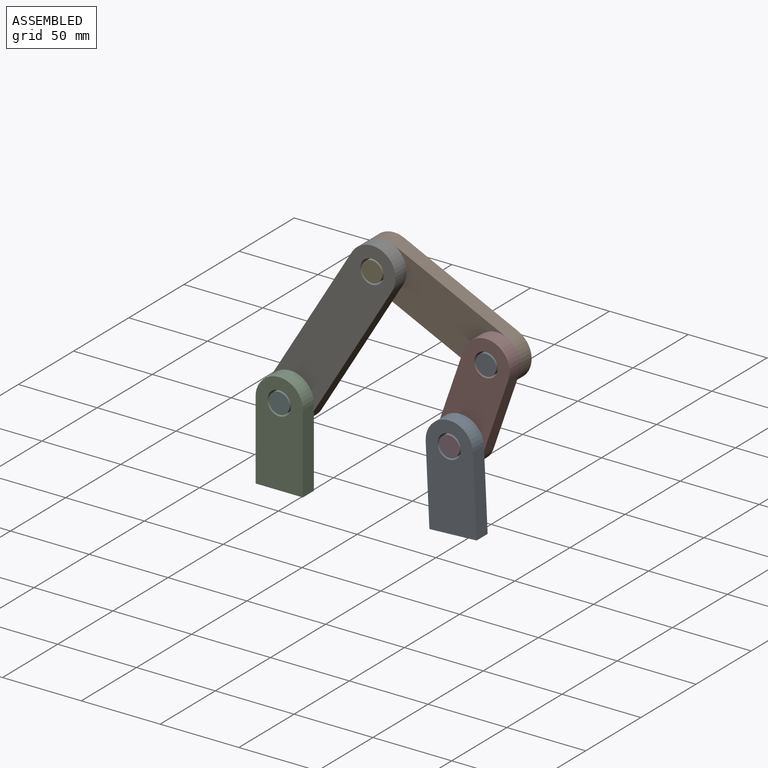
[diagram: assembled view]
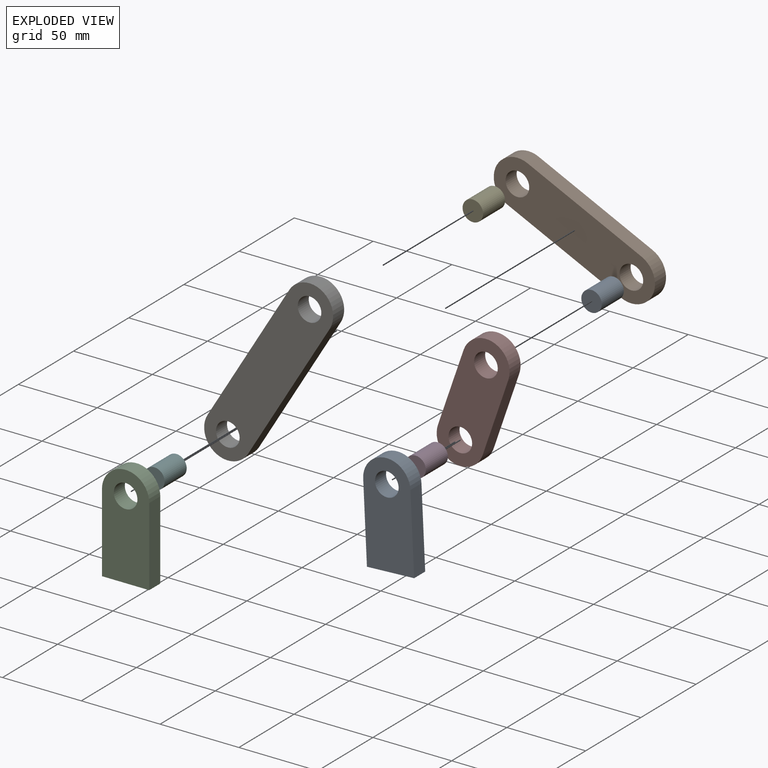
[diagram: exploded view]
GUIDED TOUR — MATED ASSEMBLY (Onshape document ad68ea50f6ec6d698caa9839, AutoMate assembly ad68ea50f6ec6d698caa9839_2b1dbaef5c6dba914f6e7a33_b04c2d4376f6a3d73c29349d_default)

This assembly has 9 components, labeled P0..P8 below (a component is one placed occurrence of a part; the same part can appear more than once), held together by 12 mates. A mate is a constraint between two components; its type names the relative motion it leaves free:
  CYLINDRICAL — leaves both rotation about and translation along the listed axis free,
  FASTENED — locks the two components together rigidly (no relative motion),
  REVOLUTE — leaves rotation about the listed axis free (a hinge).
Axis/direction vectors are unit vectors and 'through' points are millimeter coordinates, both in the assembly's world frame.

MATES
  1. FASTENED "緊固 4": P5 <-> P2, direction (0.000, -1.000, 0.000) through (-60.09, -34.81, 24.83) mm
  2. REVOLUTE "轉動 1": P6 <-> P2, axis (0.000, 1.000, 0.000) through (-60.09, -24.81, 24.83) mm
  3. CYLINDRICAL "圓柱 3": P4 <-> P6, axis (0.000, 1.000, 0.000) through (-8.25, -14.81, 110.34) mm
  4. REVOLUTE "轉動 4": P7 <-> P0, axis (0.000, -1.000, 0.000) through (47.81, -24.81, 28.86) mm
  5. REVOLUTE "轉動 2": P1 <-> P6, axis (0.000, -1.000, 0.000) through (-8.25, -14.81, 110.34) mm
  6. REVOLUTE "轉動 3": P1 <-> P7, axis (0.000, -1.000, 0.000) through (64.07, -14.81, 76.14) mm
  7. FASTENED "緊固 1": P3 <-> P0, direction (0.000, -1.000, 0.000) through (47.81, -34.81, 28.86) mm
  8. CYLINDRICAL "圓柱 1": P3 <-> P0, axis (0.000, 1.000, 0.000) through (47.81, -24.81, 28.86) mm
  9. CYLINDRICAL "圓柱 2": P5 <-> P2, axis (0.000, 1.000, 0.000) through (-60.09, -24.81, 24.83) mm
  10. FASTENED "緊固 3": P4 <-> P6, direction (0.000, -1.000, 0.000) through (-8.25, -24.81, 110.34) mm
  11. FASTENED "緊固 2": P8 <-> P7, direction (0.000, -1.000, 0.000) through (64.07, -24.81, 76.14) mm
  12. CYLINDRICAL "圓柱 4": P8 <-> P7, axis (0.000, 1.000, 0.000) through (64.07, -14.81, 76.14) mm

ASSEMBLY ORDER
  1. P7 — the base component [order verified]
  2. P1 [order verified]
  3. P8 [order verified]
  4. P6 [order verified]
  5. P4 [order verified]
  6. P5 [order verified]
  7. P3 [order verified]
  8. P2 [order verified]
  9. P0 [order verified]
Order-tag legend:
  [order verified] — this step's position reverses a verified removal order: the component was checked to insert without passing through the ones already placed.

Of the 9 components, 9 carry the full construction recipe — the FeatureScript program that regenerates the part's solid from scratch; the rest are supplied as boundary geometry only.
Each toured component is shown spotlighted twice — in the assembled view, then in the exploded view, where a leader line traces a displaced component back to its assembled socket (saturated green if recipe-attached, orange if geometry-only; every other component desaturated gray) — followed by its recipe or geometry summary and the mates that hold it.
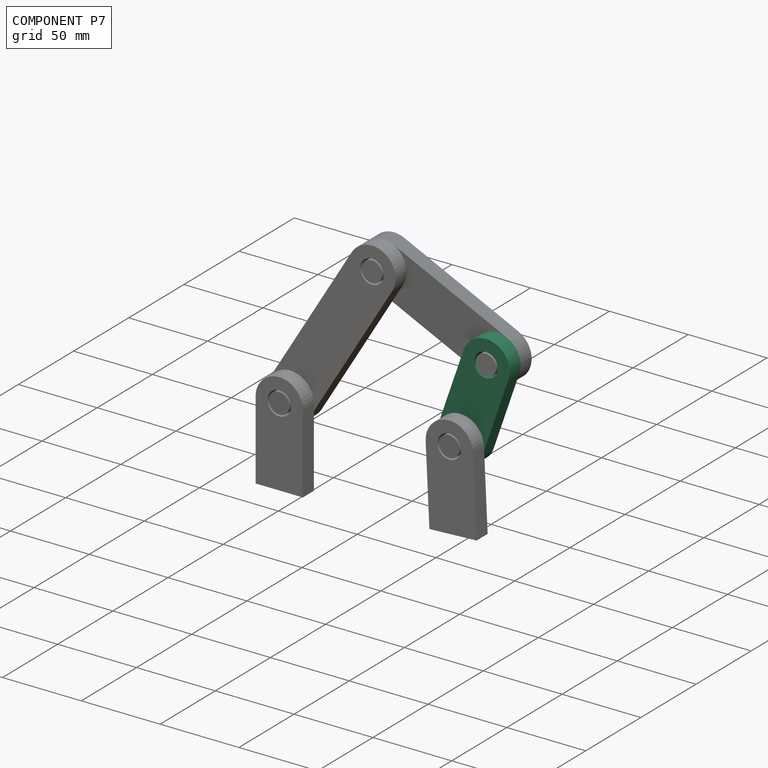
[diagram: component P7 — assembled]
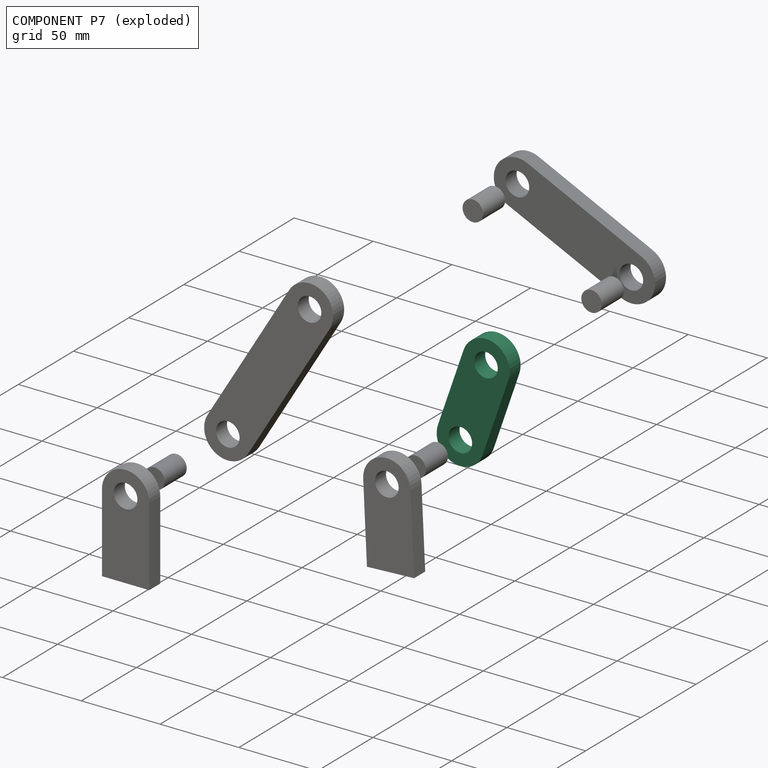
[diagram: component P7 — exploded]
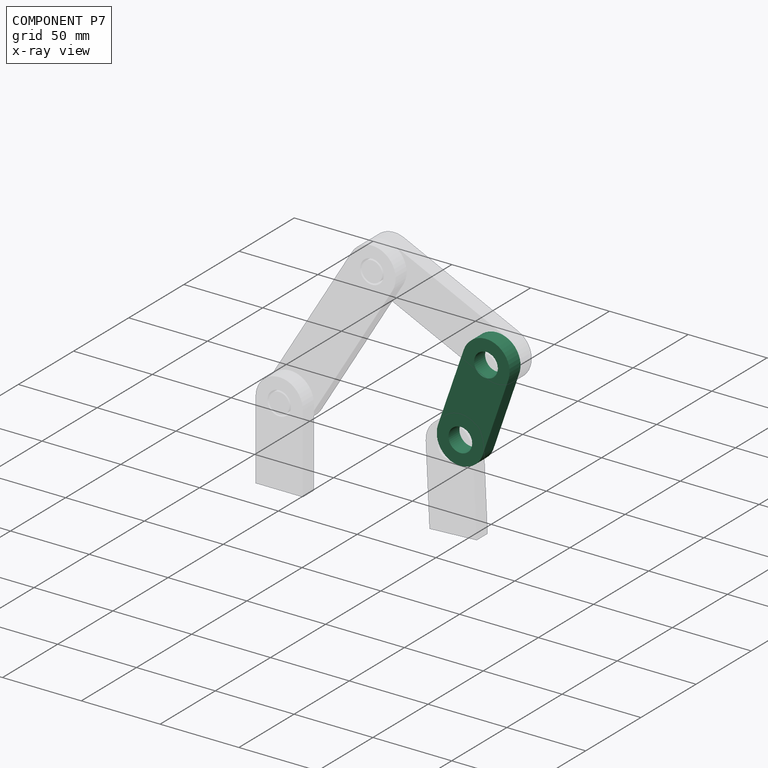
[diagram: component P7 — x-ray view]
COMPONENT P7 — recipe-attached (CADFS 00659129, mesh-verified: the recipe's output STEP matches this component's geometry to below the mesh-comparison resolution (tessellation chordal tolerance ~0.129 mm)).
Held by: REVOLUTE mate "轉動 4" to P0; REVOLUTE mate "轉動 3" to P1; FASTENED mate "緊固 2" to P8; CYLINDRICAL mate "圓柱 4" to P8.
Construction recipe (FeatureScript — the CAD program that rebuilds this solid; sketch coordinates are in the units given by the * unit suffixes, e.g. mm):

FeatureScript 1511;
import(path : "onshape/std/geometry.fs", version : "1511.0");
import(path : "onshape/std/common.fs", version : "1511.0");
const mm = millimeter;
const VERTEX = EntityType.VERTEX;
const EDGE = EntityType.EDGE;
const FACE = EntityType.FACE;
const BODY = EntityType.BODY;
function v(x, y){return vector(x, y);}
function OD(order){return orderDisambiguation(order);}
function OSD(set){return originalSetDisambiguation(set);}
function TD(topology){return topologyDisambiguation(topology);}
function TDD(query){return trueDependencyDisambiguation(query);}
function sQuery(a, b, c) {return sketchEntityQuery(a, b, c);}

annotation { "Feature Type Name" : "Feature", "Feature Type Description" : "" }
export const myFeature = defineFeature(function(context is Context, id is Id, definition is map)
    precondition{}
    {
        {
            var Q0;
            Q0=qCreatedBy(makeId("Front.planeOp"),FACE);
            var sketch = newSketch(context, id + "F0", { "sketchPlane" : qUnion([Q0])});
            skLineSegment(sketch, "E0", {"start": v(0, 40) * mm, "end": v(0, 0) * mm, "construction": true});
            skLineSegment(sketch, "E1", {"start": v(-15, 0) * mm, "end": v(15, 0) * mm, "construction": true});
            skCircle(sketch, "E2", {"center": v(0, 25) * mm, "radius": 7.5 * mm});
            skArc(sketch, "E3", {"start": v(15, 25) * mm, "mid": v(0, 40) * mm, "end": v(-15, 25) * mm});
            skLineSegment(sketch, "E4", {"start": v(-15, 25) * mm, "end": v(-15, 0) * mm});
            skLineSegment(sketch, "E5", {"start": v(15, 25) * mm, "end": v(15, 0) * mm});
            skArc(sketch, "E6.MirrorCS", {"start": v(15, -25) * mm, "mid": v(0, -40) * mm, "end": v(-15, -25) * mm});
            skCircle(sketch, "E7.MirrorC", {"center": v(0, -25) * mm, "radius": 7.5 * mm});
            skLineSegment(sketch, "E8.MirrorCS", {"start": v(15, -25) * mm, "end": v(15, 0) * mm});
            skLineSegment(sketch, "E9.MirrorCS", {"start": v(-15, -25) * mm, "end": v(-15, 0) * mm});
            skSolve(sketch);
        }
        {
            var Q0;
            Q0=qSketchRegion(id+"F0",true);
            extrude(context, id + "F1", {"entities" : qUnion([Q0]), "depth" : 10 * mm, "offsetDistance" : 25 * mm});
        }
    });
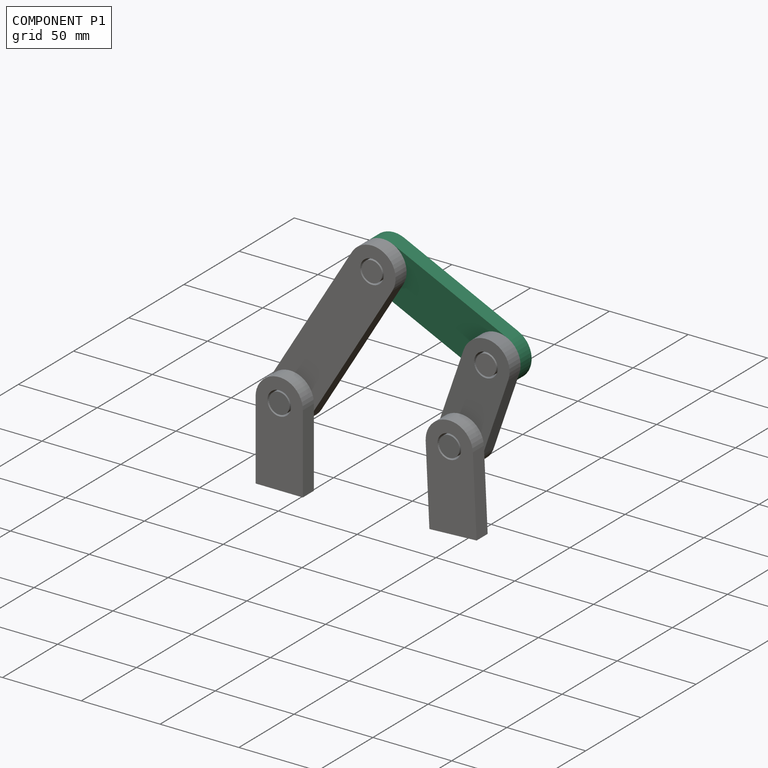
[diagram: component P1 — assembled]
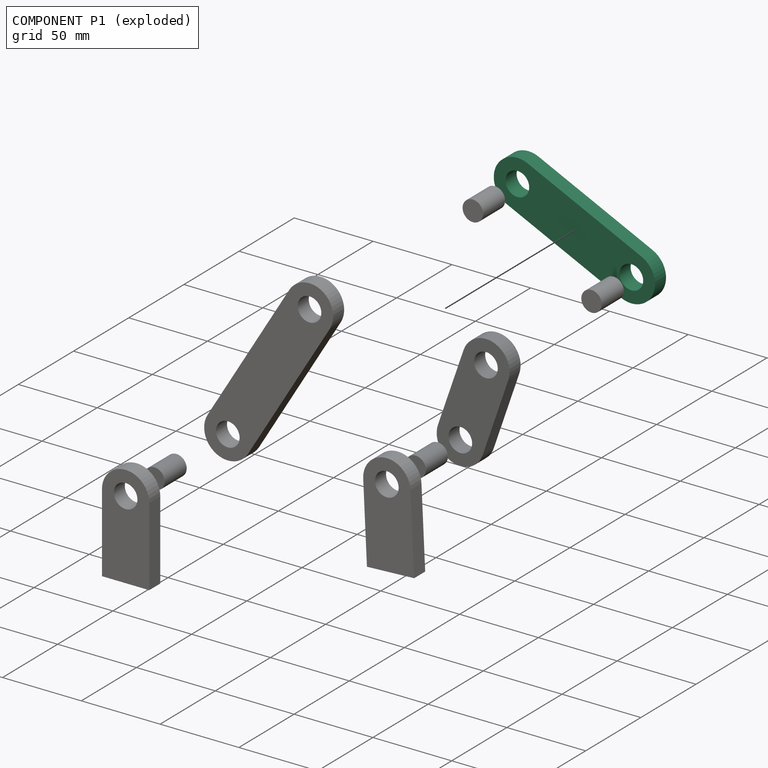
[diagram: component P1 — exploded]
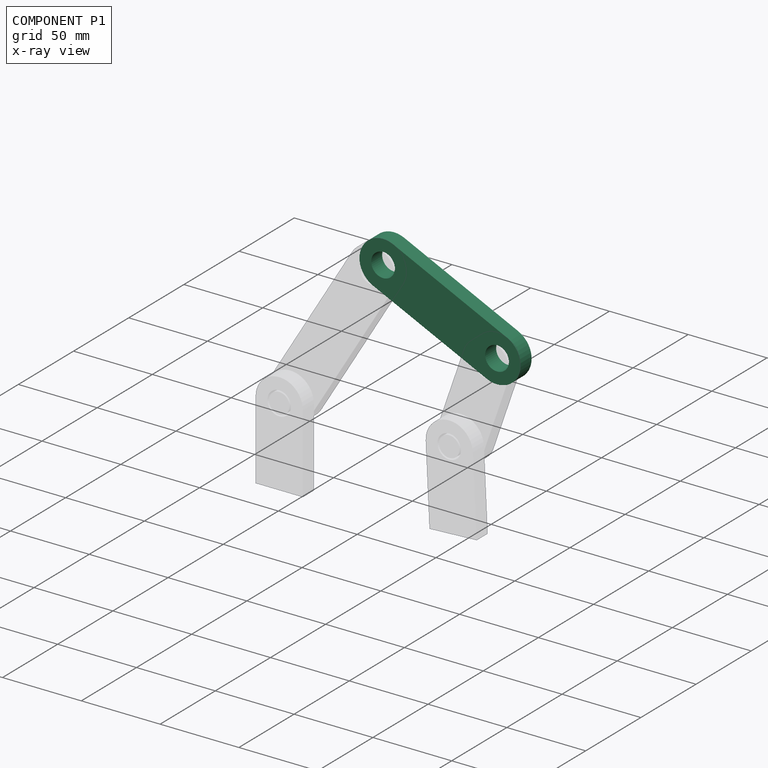
[diagram: component P1 — x-ray view]
COMPONENT P1 — recipe-attached (CADFS 00659130, mesh-verified: the recipe's output STEP matches this component's geometry to below the mesh-comparison resolution (tessellation chordal tolerance ~0.172 mm)).
Held by: REVOLUTE mate "轉動 2" to P6; REVOLUTE mate "轉動 3" to P7.
Construction recipe (FeatureScript — the CAD program that rebuilds this solid; sketch coordinates are in the units given by the * unit suffixes, e.g. mm):

FeatureScript 1511;
import(path : "onshape/std/geometry.fs", version : "1511.0");
import(path : "onshape/std/common.fs", version : "1511.0");
const mm = millimeter;
const VERTEX = EntityType.VERTEX;
const EDGE = EntityType.EDGE;
const FACE = EntityType.FACE;
const BODY = EntityType.BODY;
function v(x, y){return vector(x, y);}
function OD(order){return orderDisambiguation(order);}
function OSD(set){return originalSetDisambiguation(set);}
function TD(topology){return topologyDisambiguation(topology);}
function TDD(query){return trueDependencyDisambiguation(query);}
function sQuery(a, b, c) {return sketchEntityQuery(a, b, c);}

annotation { "Feature Type Name" : "Feature", "Feature Type Description" : "" }
export const myFeature = defineFeature(function(context is Context, id is Id, definition is map)
    precondition{}
    {
        {
            var Q0;
            Q0=qCreatedBy(makeId("Front.planeOp"),FACE);
            var sketch = newSketch(context, id + "F0", { "sketchPlane" : qUnion([Q0])});
            skLineSegment(sketch, "E0", {"start": v(0, 55) * mm, "end": v(0, 0) * mm, "construction": true});
            skLineSegment(sketch, "E1", {"start": v(-15, 0) * mm, "end": v(15, 0) * mm, "construction": true});
            skCircle(sketch, "E2", {"center": v(0, 40) * mm, "radius": 7.5 * mm});
            skArc(sketch, "E3", {"start": v(15, 40) * mm, "mid": v(0, 55) * mm, "end": v(-15, 40) * mm});
            skLineSegment(sketch, "E4", {"start": v(-15, 40) * mm, "end": v(-15, 0) * mm});
            skLineSegment(sketch, "E5", {"start": v(15, 40) * mm, "end": v(15, 0) * mm});
            skArc(sketch, "E6.MirrorCS", {"start": v(15, -40) * mm, "mid": v(0, -55) * mm, "end": v(-15, -40) * mm});
            skCircle(sketch, "E7.MirrorC", {"center": v(0, -40) * mm, "radius": 7.5 * mm});
            skLineSegment(sketch, "E8.MirrorCS", {"start": v(15, -40) * mm, "end": v(15, 0) * mm});
            skLineSegment(sketch, "E9.MirrorCS", {"start": v(-15, -40) * mm, "end": v(-15, 0) * mm});
            skSolve(sketch);
        }
        {
            var Q0;
            Q0=qSketchRegion(id+"F0",true);
            extrude(context, id + "F1", {"entities" : qUnion([Q0]), "depth" : 10 * mm, "offsetDistance" : 25 * mm});
        }
    });
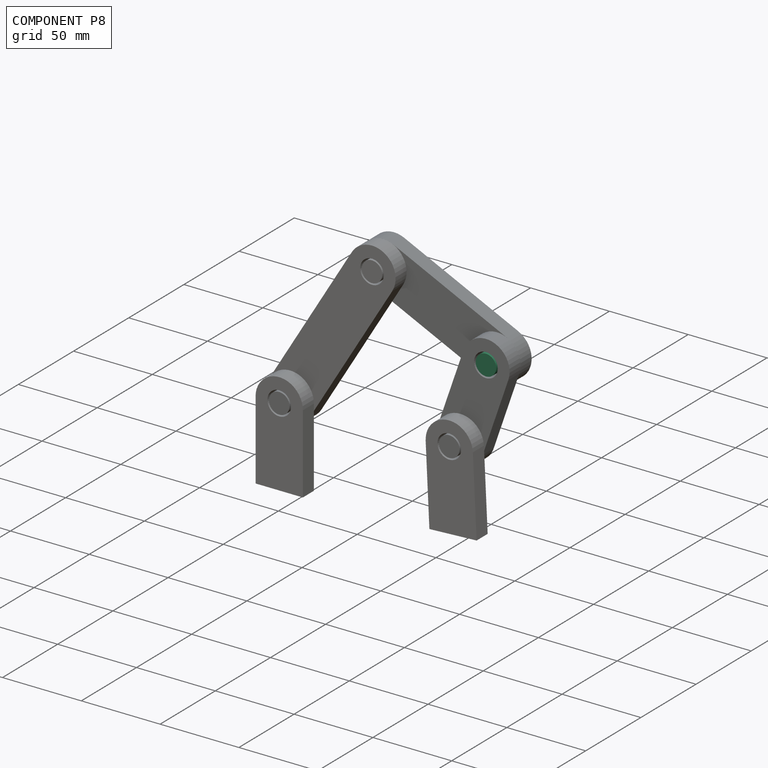
[diagram: component P8 — assembled]
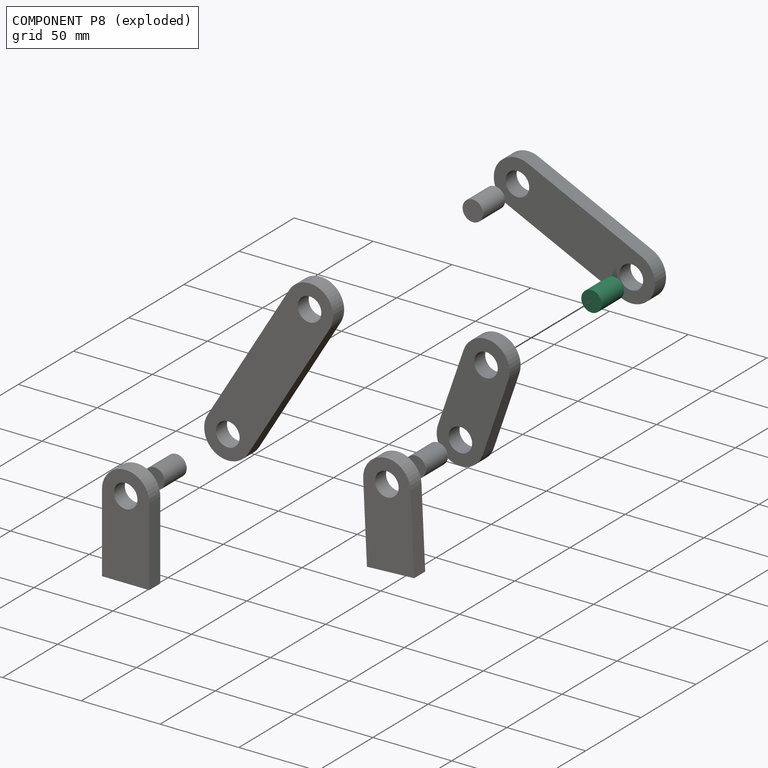
[diagram: component P8 — exploded]
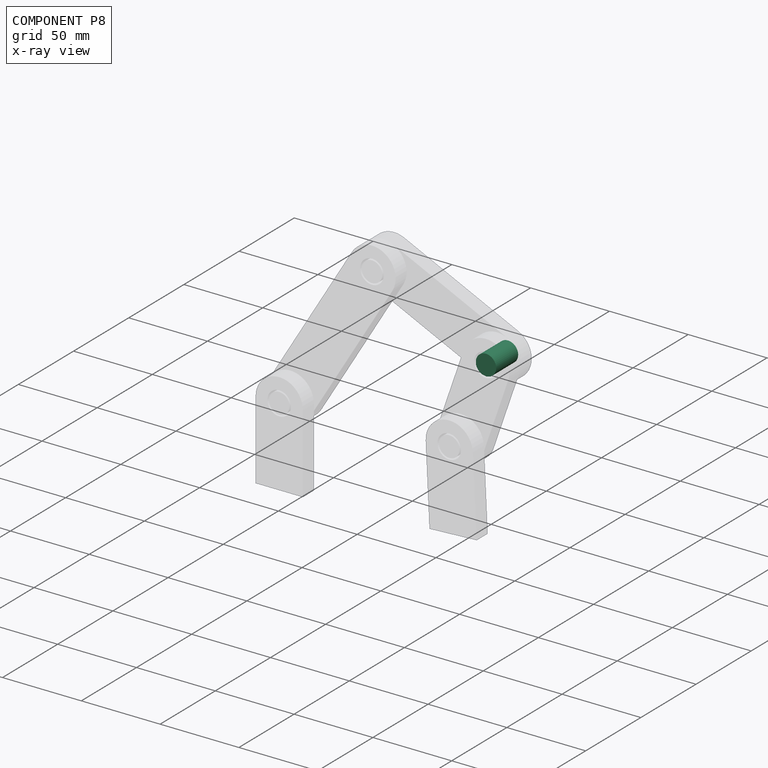
[diagram: component P8 — x-ray view]
COMPONENT P8 — same part as P3 (CADFS 00659132); its construction recipe is shown at P3.
Held by: FASTENED mate "緊固 2" to P7; CYLINDRICAL mate "圓柱 4" to P7.
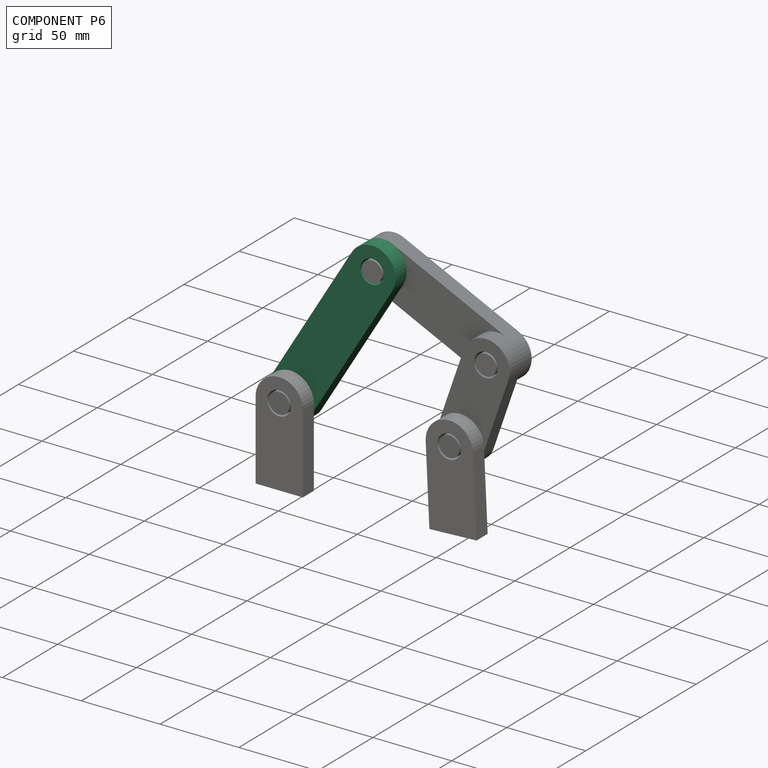
[diagram: component P6 — assembled]
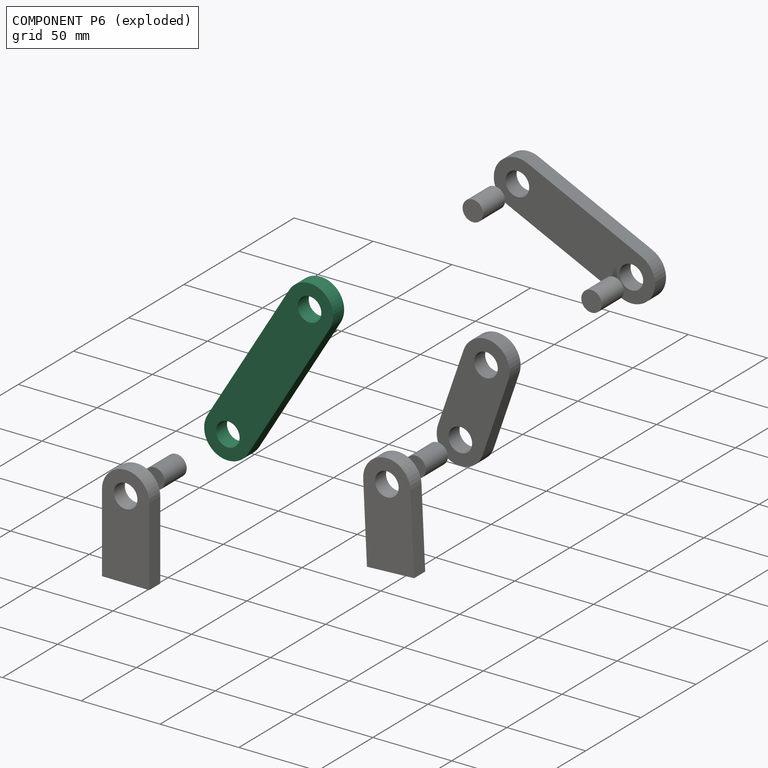
[diagram: component P6 — exploded]
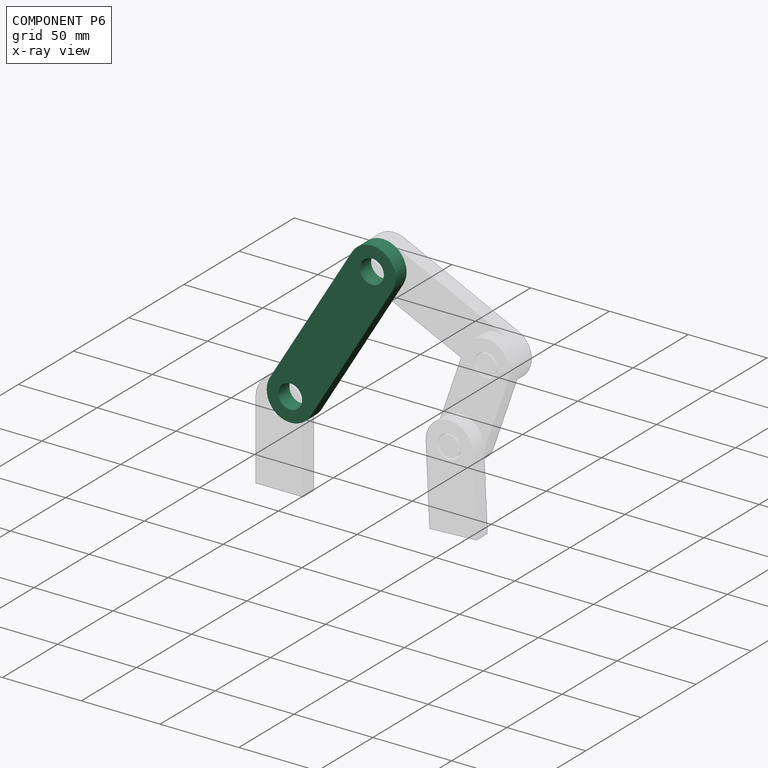
[diagram: component P6 — x-ray view]
COMPONENT P6 — recipe-attached (CADFS 00659131, mesh-verified: the recipe's output STEP matches this component's geometry to below the mesh-comparison resolution (tessellation chordal tolerance ~0.201 mm)).
Held by: REVOLUTE mate "轉動 1" to P2; CYLINDRICAL mate "圓柱 3" to P4; REVOLUTE mate "轉動 2" to P1; FASTENED mate "緊固 3" to P4.
Construction recipe (FeatureScript — the CAD program that rebuilds this solid; sketch coordinates are in the units given by the * unit suffixes, e.g. mm):

FeatureScript 1511;
import(path : "onshape/std/geometry.fs", version : "1511.0");
import(path : "onshape/std/common.fs", version : "1511.0");
const mm = millimeter;
const VERTEX = EntityType.VERTEX;
const EDGE = EntityType.EDGE;
const FACE = EntityType.FACE;
const BODY = EntityType.BODY;
function v(x, y){return vector(x, y);}
function OD(order){return orderDisambiguation(order);}
function OSD(set){return originalSetDisambiguation(set);}
function TD(topology){return topologyDisambiguation(topology);}
function TDD(query){return trueDependencyDisambiguation(query);}
function sQuery(a, b, c) {return sketchEntityQuery(a, b, c);}

annotation { "Feature Type Name" : "Feature", "Feature Type Description" : "" }
export const myFeature = defineFeature(function(context is Context, id is Id, definition is map)
    precondition{}
    {
        {
            var Q0;
            Q0=qCreatedBy(makeId("Front.planeOp"),FACE);
            var sketch = newSketch(context, id + "F0", { "sketchPlane" : qUnion([Q0])});
            skLineSegment(sketch, "E0", {"start": v(0, 65) * mm, "end": v(0, 0) * mm, "construction": true});
            skLineSegment(sketch, "E1", {"start": v(-15, 0) * mm, "end": v(15, 0) * mm, "construction": true});
            skCircle(sketch, "E2", {"center": v(0, 50) * mm, "radius": 7.5 * mm});
            skArc(sketch, "E3", {"start": v(15, 50) * mm, "mid": v(0, 65) * mm, "end": v(-15, 50) * mm});
            skLineSegment(sketch, "E4", {"start": v(-15, 50) * mm, "end": v(-15, 0) * mm});
            skLineSegment(sketch, "E5", {"start": v(15, 50) * mm, "end": v(15, 0) * mm});
            skArc(sketch, "E6.MirrorCS", {"start": v(15, -50) * mm, "mid": v(0, -65) * mm, "end": v(-15, -50) * mm});
            skCircle(sketch, "E7.MirrorC", {"center": v(0, -50) * mm, "radius": 7.5 * mm});
            skLineSegment(sketch, "E8.MirrorCS", {"start": v(15, -50) * mm, "end": v(15, 0) * mm});
            skLineSegment(sketch, "E9.MirrorCS", {"start": v(-15, -50) * mm, "end": v(-15, 0) * mm});
            skSolve(sketch);
        }
        {
            var Q0;
            Q0=qSketchRegion(id+"F0",true);
            extrude(context, id + "F1", {"entities" : qUnion([Q0]), "depth" : 10 * mm, "offsetDistance" : 25 * mm});
        }
    });
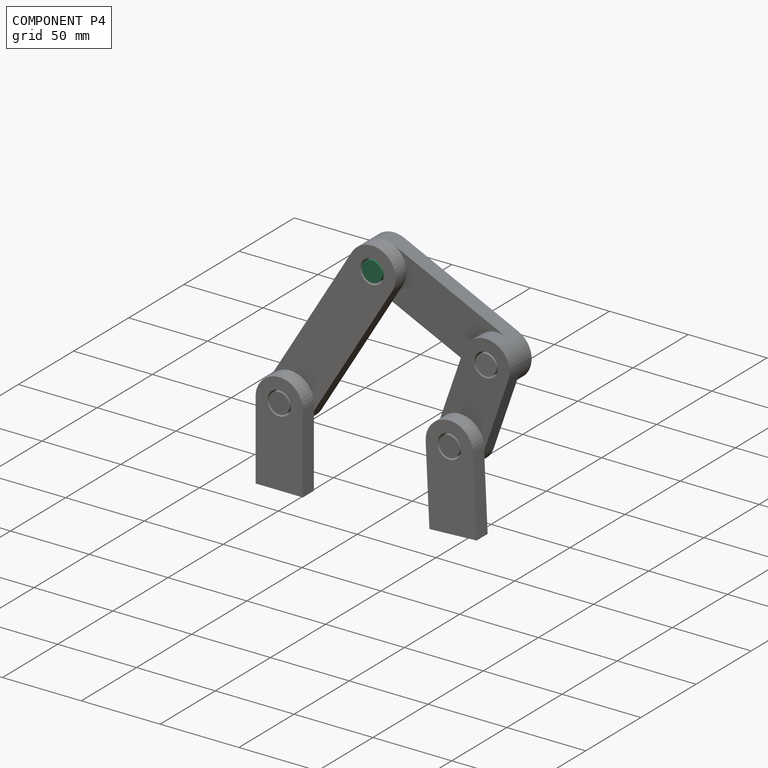
[diagram: component P4 — assembled]
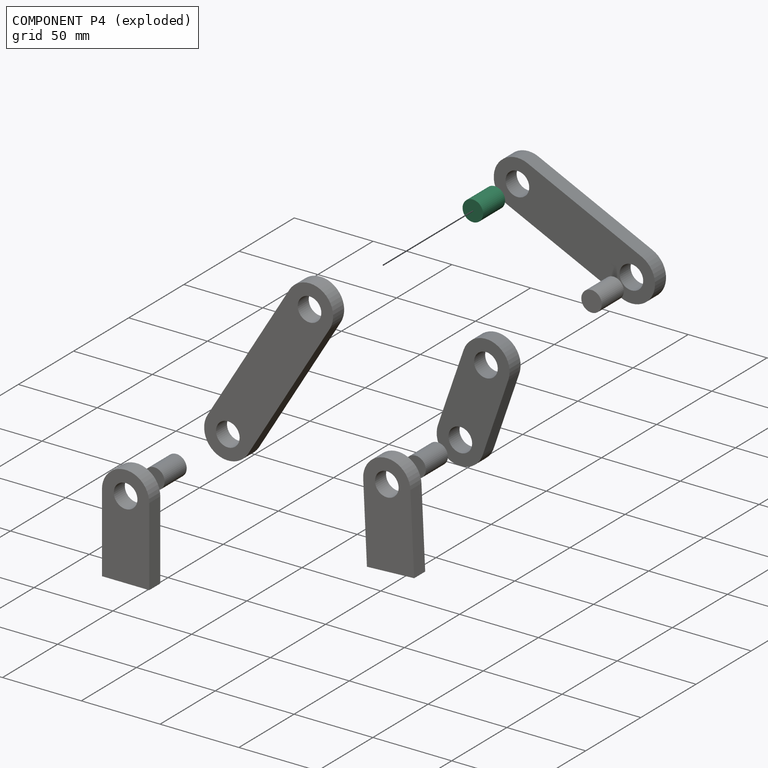
[diagram: component P4 — exploded]
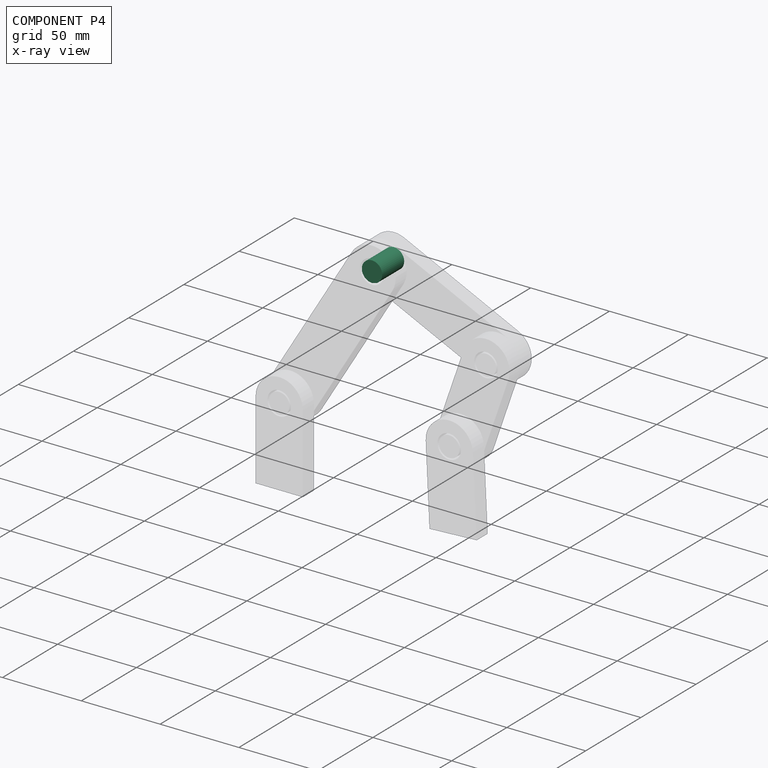
[diagram: component P4 — x-ray view]
COMPONENT P4 — same part as P3 (CADFS 00659132); its construction recipe is shown at P3.
Held by: CYLINDRICAL mate "圓柱 3" to P6; FASTENED mate "緊固 3" to P6.
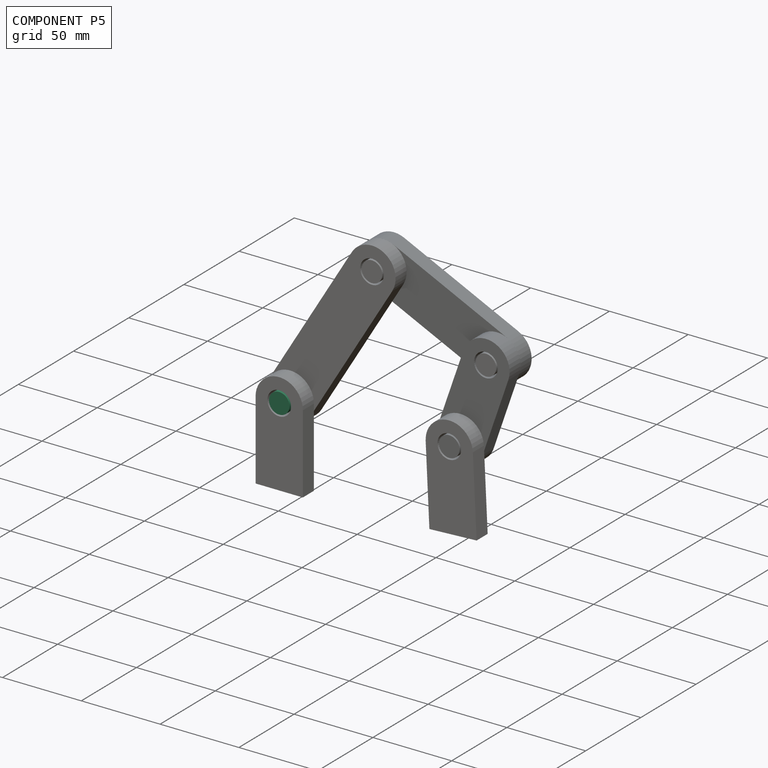
[diagram: component P5 — assembled]
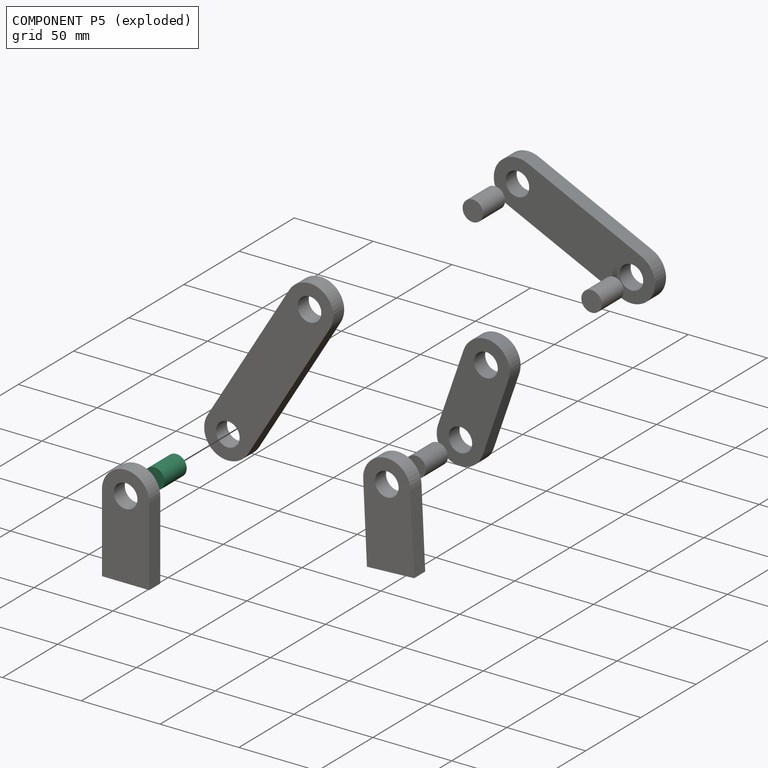
[diagram: component P5 — exploded]
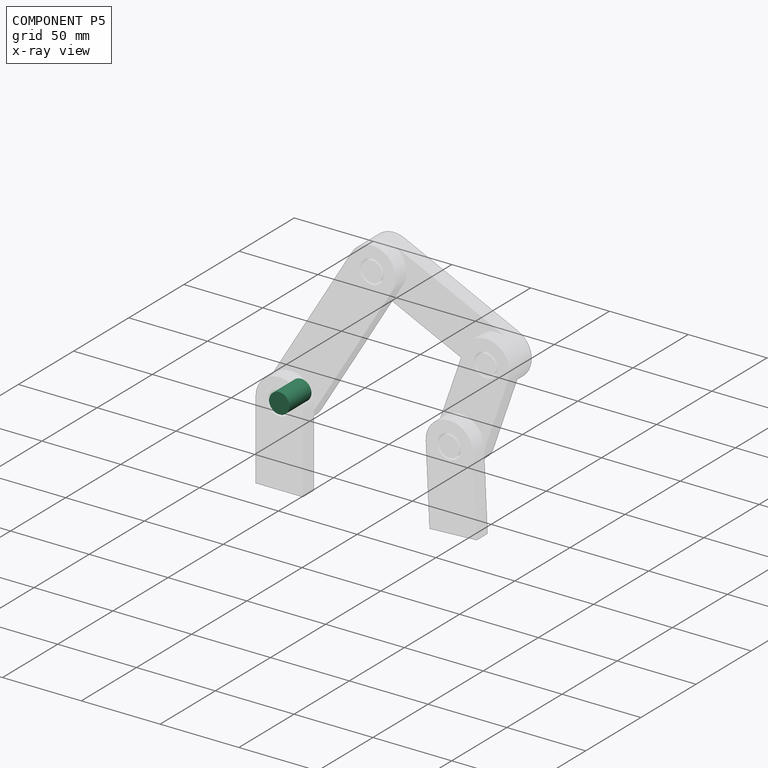
[diagram: component P5 — x-ray view]
COMPONENT P5 — same part as P3 (CADFS 00659132); its construction recipe is shown at P3.
Held by: FASTENED mate "緊固 4" to P2; CYLINDRICAL mate "圓柱 2" to P2.
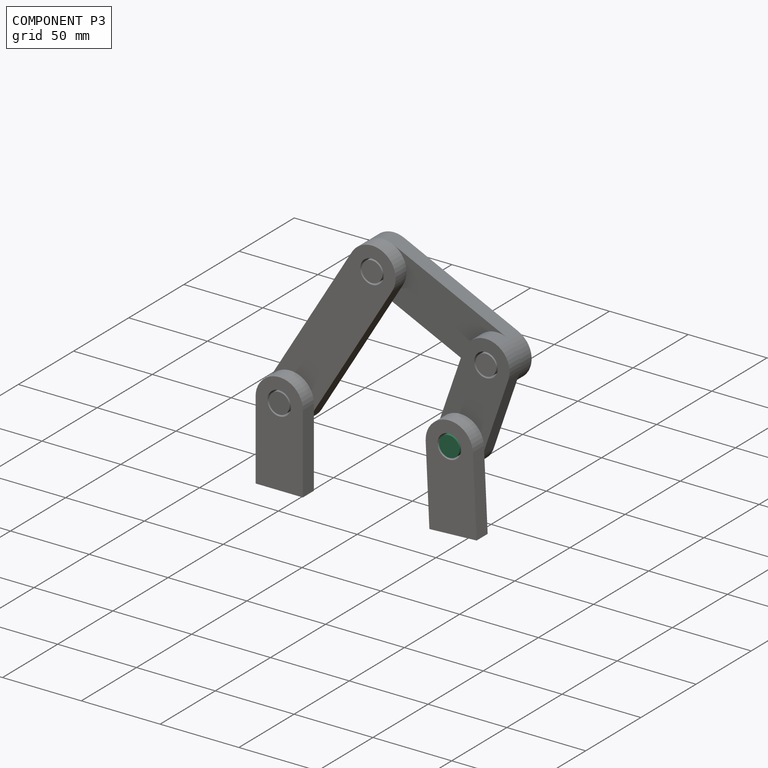
[diagram: component P3 — assembled]
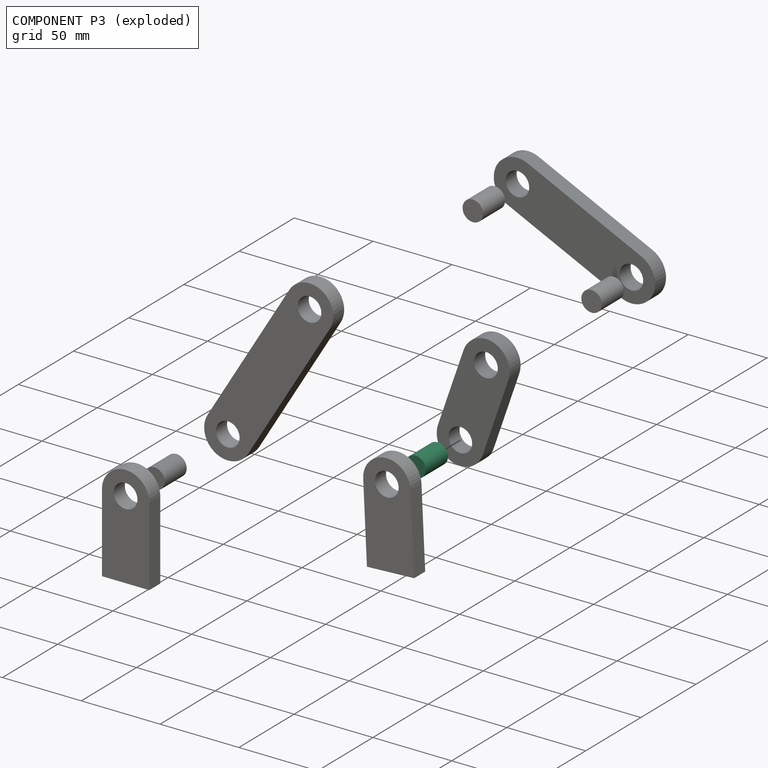
[diagram: component P3 — exploded]
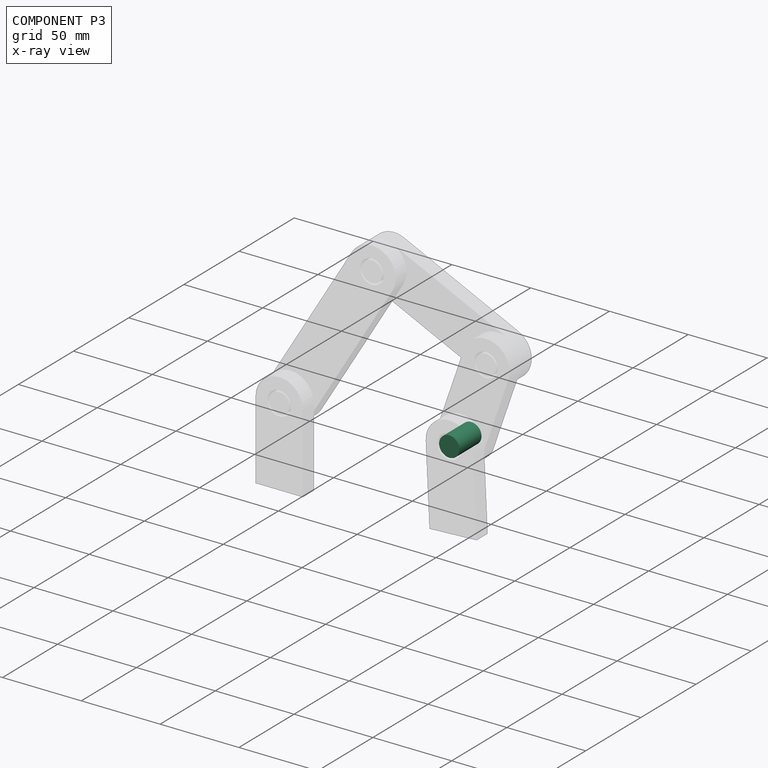
[diagram: component P3 — x-ray view]
COMPONENT P3 — recipe-attached (CADFS 00659132, mesh-verified: the recipe's output STEP matches this component's geometry to below the mesh-comparison resolution (tessellation chordal tolerance ~0.0407 mm)).
Held by: FASTENED mate "緊固 1" to P0; CYLINDRICAL mate "圓柱 1" to P0.
Construction recipe (FeatureScript — the CAD program that rebuilds this solid; sketch coordinates are in the units given by the * unit suffixes, e.g. mm):

FeatureScript 1511;
import(path : "onshape/std/geometry.fs", version : "1511.0");
import(path : "onshape/std/common.fs", version : "1511.0");
const mm = millimeter;
const VERTEX = EntityType.VERTEX;
const EDGE = EntityType.EDGE;
const FACE = EntityType.FACE;
const BODY = EntityType.BODY;
function v(x, y){return vector(x, y);}
function OD(order){return orderDisambiguation(order);}
function OSD(set){return originalSetDisambiguation(set);}
function TD(topology){return topologyDisambiguation(topology);}
function TDD(query){return trueDependencyDisambiguation(query);}
function sQuery(a, b, c) {return sketchEntityQuery(a, b, c);}

annotation { "Feature Type Name" : "Feature", "Feature Type Description" : "" }
export const myFeature = defineFeature(function(context is Context, id is Id, definition is map)
    precondition{}
    {
        {
            var Q0;
            Q0=qCreatedBy(makeId("Top.planeOp"),FACE);
            var sketch = newSketch(context, id + "F0", { "sketchPlane" : qUnion([Q0])});
            skCircle(sketch, "E0", {"center": v(0, 0) * mm, "radius": 6.5 * mm});
            skSolve(sketch);
        }
        {
            var Q0;
            Q0 = qSketchRegion(id + "F0", true);
            extrude(context, id + "F1", {"entities" : qUnion([Q0]), "endBound" : BoundingType.SYMMETRIC, "depth" : 20 * mm, "offsetDistance" : 25 * mm});
        }
    });
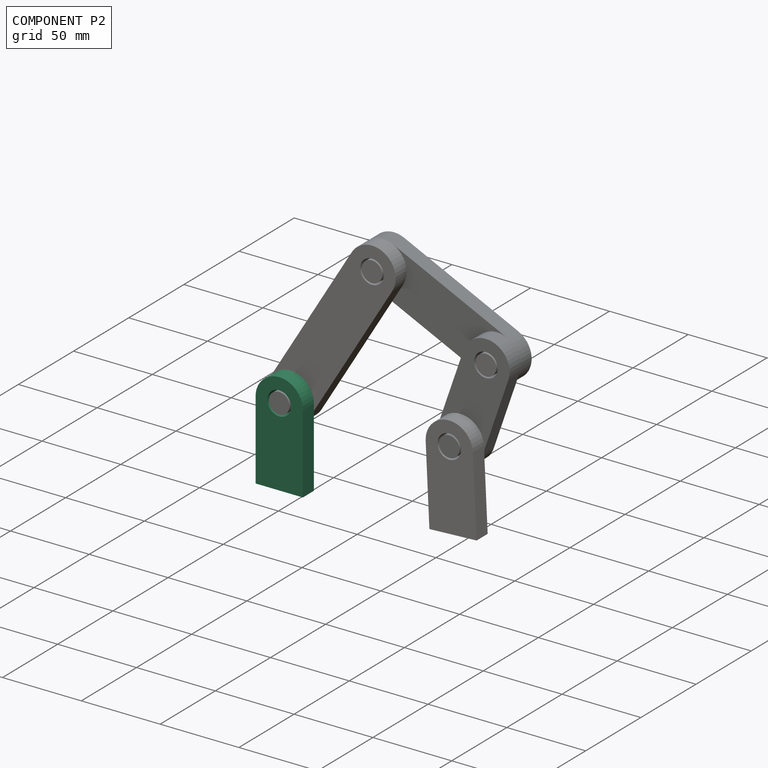
[diagram: component P2 — assembled]
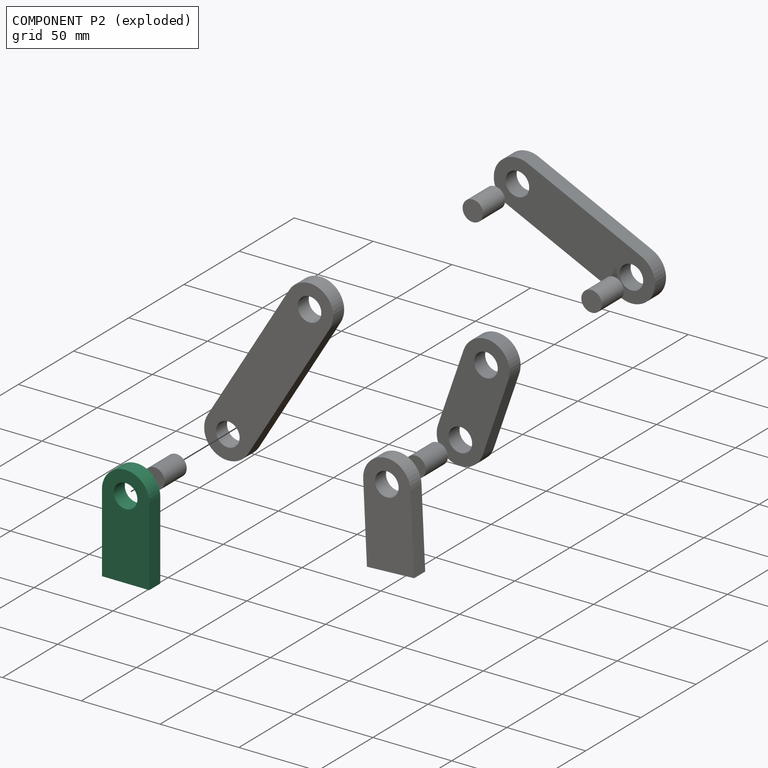
[diagram: component P2 — exploded]
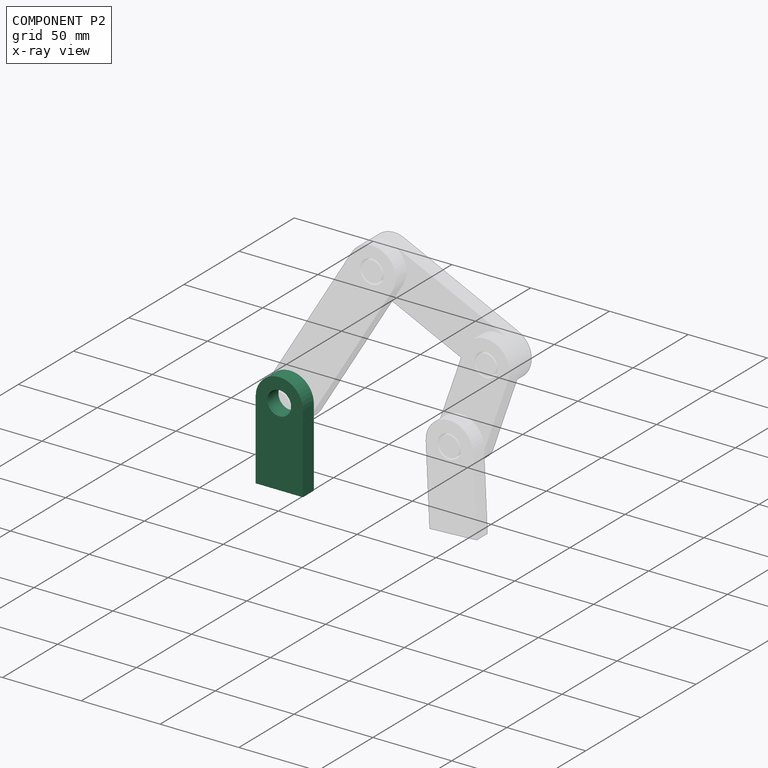
[diagram: component P2 — x-ray view]
COMPONENT P2 — same part as P0 (CADFS 00659128); its construction recipe is shown at P0.
Held by: FASTENED mate "緊固 4" to P5; REVOLUTE mate "轉動 1" to P6; CYLINDRICAL mate "圓柱 2" to P5.
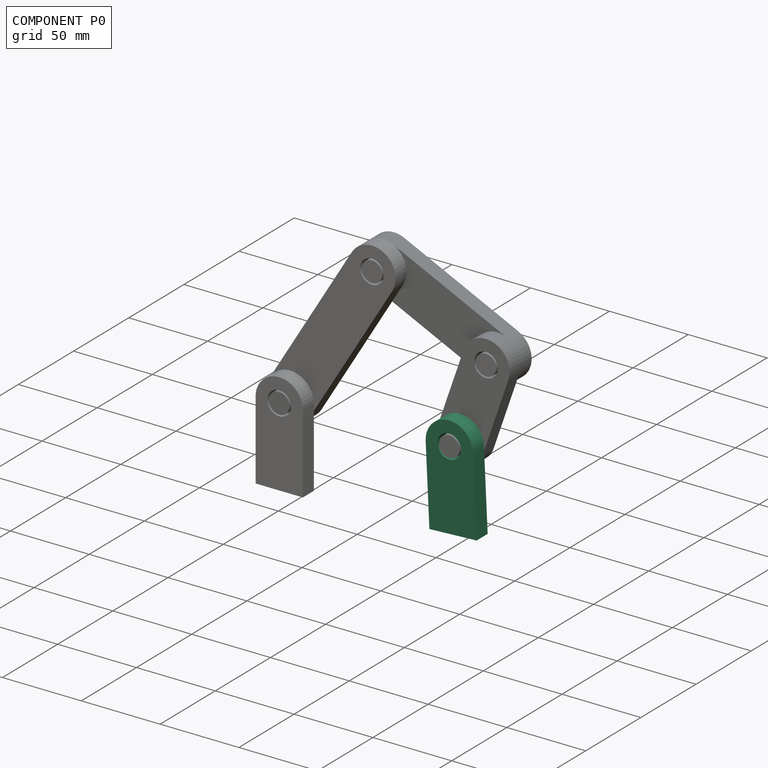
[diagram: component P0 — assembled]
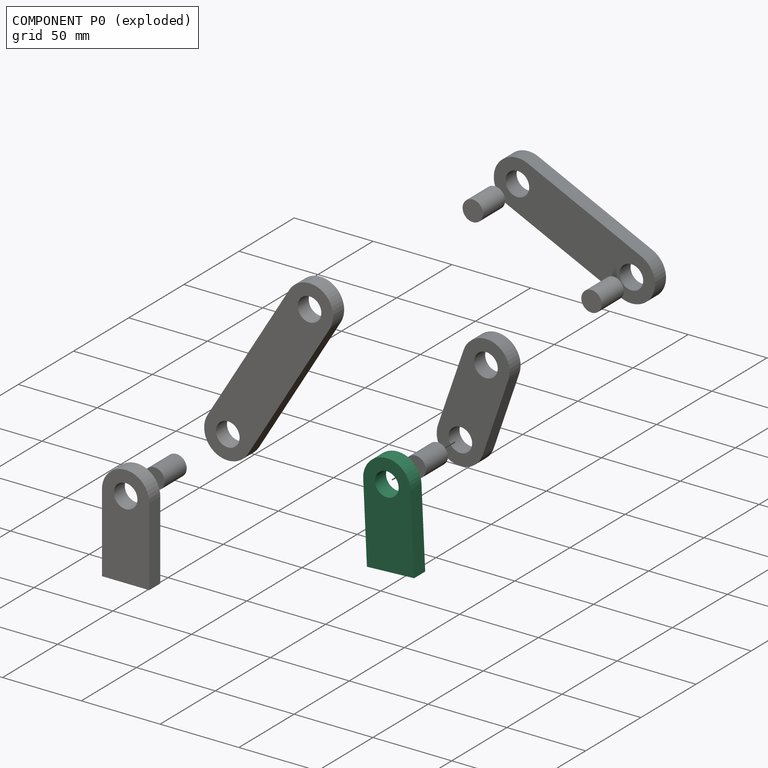
[diagram: component P0 — exploded]
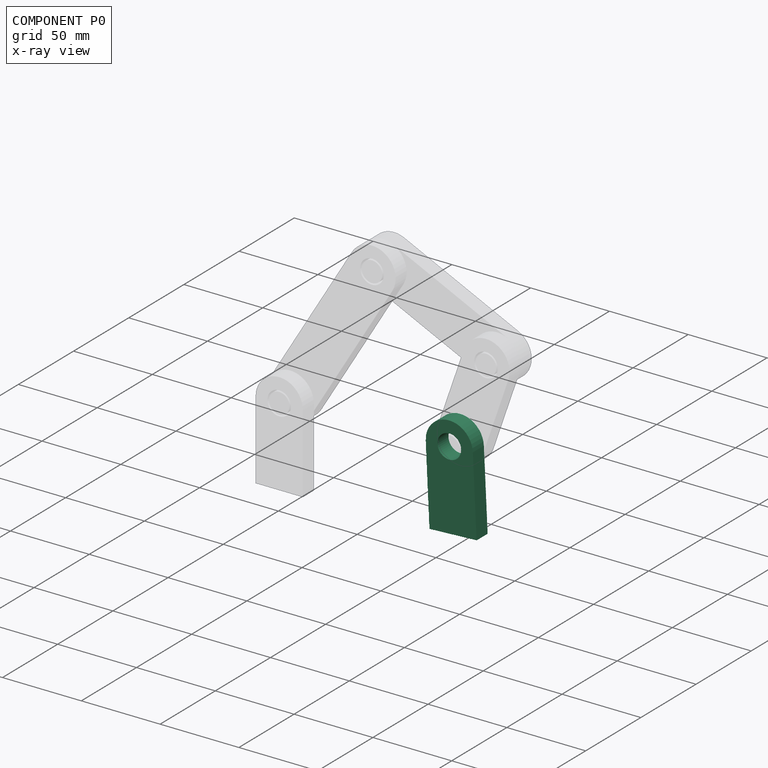
[diagram: component P0 — x-ray view]
COMPONENT P0 — recipe-attached (CADFS 00659128, mesh-verified: the recipe's output STEP matches this component's geometry to below the mesh-comparison resolution (tessellation chordal tolerance ~0.108 mm)).
Held by: REVOLUTE mate "轉動 4" to P7; FASTENED mate "緊固 1" to P3; CYLINDRICAL mate "圓柱 1" to P3.
Construction recipe (FeatureScript — the CAD program that rebuilds this solid; sketch coordinates are in the units given by the * unit suffixes, e.g. mm):

FeatureScript 1511;
import(path : "onshape/std/geometry.fs", version : "1511.0");
import(path : "onshape/std/common.fs", version : "1511.0");
const mm = millimeter;
const VERTEX = EntityType.VERTEX;
const EDGE = EntityType.EDGE;
const FACE = EntityType.FACE;
const BODY = EntityType.BODY;
function v(x, y){return vector(x, y);}
function OD(order){return orderDisambiguation(order);}
function OSD(set){return originalSetDisambiguation(set);}
function TD(topology){return topologyDisambiguation(topology);}
function TDD(query){return trueDependencyDisambiguation(query);}
function sQuery(a, b, c) {return sketchEntityQuery(a, b, c);}

annotation { "Feature Type Name" : "Feature", "Feature Type Description" : "" }
export const myFeature = defineFeature(function(context is Context, id is Id, definition is map)
    precondition{}
    {
        {
            var Q0;
            Q0=qCreatedBy(makeId("Front.planeOp"),FACE);
            var sketch = newSketch(context, id + "F0", { "sketchPlane" : qUnion([Q0])});
            skLineSegment(sketch, "E0", {"start": v(0, 65) * mm, "end": v(0, 0) * mm, "construction": true});
            skLineSegment(sketch, "E1", {"start": v(-15, 0) * mm, "end": v(15, 0) * mm});
            skCircle(sketch, "E2", {"center": v(0, 50) * mm, "radius": 7.5 * mm});
            skArc(sketch, "E3", {"start": v(15, 50) * mm, "mid": v(0, 65) * mm, "end": v(-15, 50) * mm});
            skLineSegment(sketch, "E4", {"start": v(-15, 50) * mm, "end": v(-15, 0) * mm});
            skLineSegment(sketch, "E5", {"start": v(15, 50) * mm, "end": v(15, 0) * mm});
            skSolve(sketch);
        }
        {
            var Q0;
            Q0 = qSketchRegion(id + "F0", true);
            extrude(context, id + "F1", {"entities" : qUnion([Q0]), "depth" : 10 * mm, "offsetDistance" : 25 * mm});
        }
    });
PROVENANCE & LICENSES
Assembly (occurrences, transforms, mates, per-part STEP geometry): AutoMate dataset, Zenodo record 7776208, CC0.
Construction recipes: CADFS (HuggingFace VladPyatov/CADFS, CC-BY-4.0, layered over the ABC dataset), FeatureScript reconstruction programs keyed by ABC model id.
Join: ABC meta listings map ABC model id -> Onshape documentId; within a shared document, parts are matched by geometric signature (bounding-box dims + volume at 0.1% relative tolerance, exact B-rep face/solid counts).
Verification: 9 of this assembly's 9 components carry a recipe attachment, and every attachment is mesh-verified: the CADFS STEP and the AutoMate member STEP were compared as meshes in their shared local frame (symmetric sampled-point-to-mesh distance); worst across the 9 attachments: below the mesh-comparison resolution (tessellation chordal tolerance ~0.201 mm) on a 134 mm part.
Renders: orthographic iso camera (az 35 / el 25); the floor grid conveys scale (grid pitch printed in each image; no ruler). In the exploded view each component is displaced by its stored offset vector: the offsets alone carry the explosion direction (mate normal/axis signs are not orientation cues and do not encode it), and separation distances are assigned per mate-chain, not proportionally to assembly-order depth.
